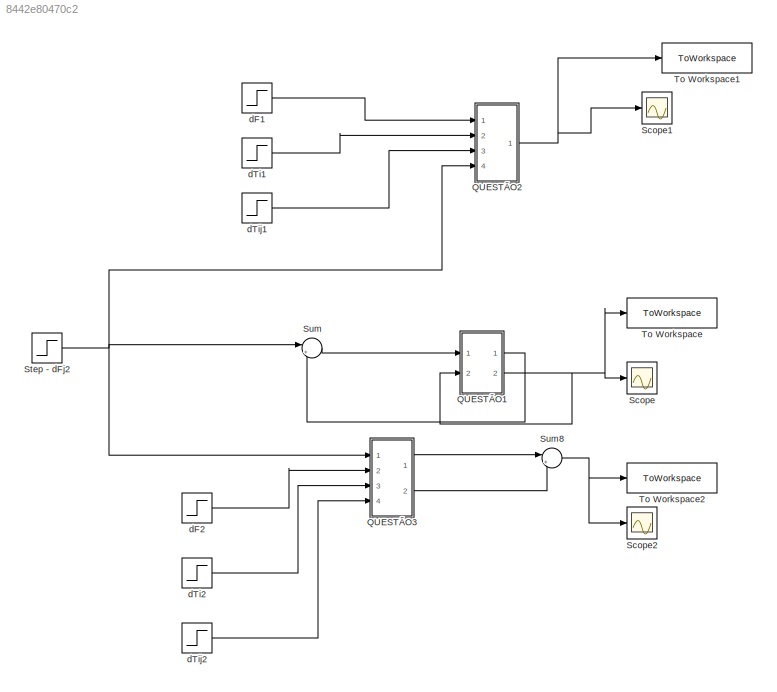
MODEL slx_8442e80470c2
KIND model
CONFIG AbsTol = auto
CONFIG EnableMultiTasking = off
CONFIG FixedStep = auto
CONFIG MaxStep = auto
CONFIG MinStep = auto
CONFIG RelTol = 1e-3
CONFIG SampleTimeConstraint = Unconstrained
CONFIG SolverName = VariableStepAuto
CONFIG StartTime = 0.0
CONFIG StopTime = 1800
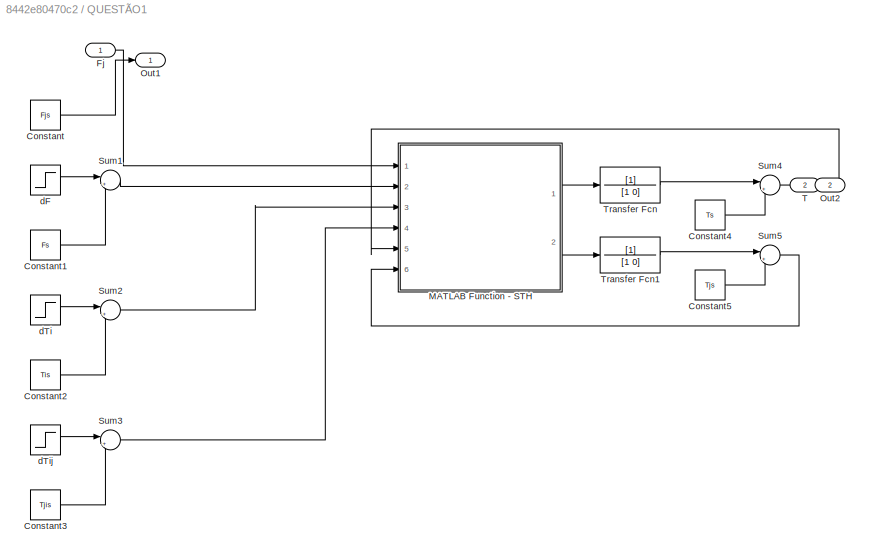
BLOCK [SubSystem] QUESTÃO1
  Ports = [2, 2]
  RequestExecContextInheritance = off
BLOCK [Constant] QUESTÃO1/Constant
  Value = Fjs
BLOCK [Constant] QUESTÃO1/Constant1
  Value = Fs
BLOCK [Constant] QUESTÃO1/Constant2
  Value = Tis
BLOCK [Constant] QUESTÃO1/Constant3
  Value = Tjis
BLOCK [Constant] QUESTÃO1/Constant4
  Value = Ts
BLOCK [Constant] QUESTÃO1/Constant5
  Value = Tjs
BLOCK [Inport] QUESTÃO1/Fj
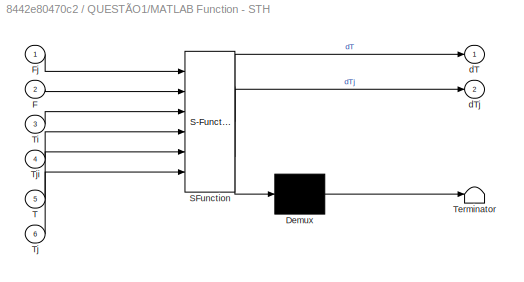
BLOCK [SubSystem] QUESTÃO1/MATLAB Function - STH
  ErrorFcn = Stateflow.Translate.translate
  PermitHierarchicalResolution = ExplicitOnly
  Ports = [6, 2]
  RequestExecContextInheritance = off
  SFBlockType = MATLAB Function
  TreatAsAtomicUnit = on
BLOCK [Demux] QUESTÃO1/MATLAB Function - STH/ Demux 
  Outputs = 1
  Ports = [1, 1]
BLOCK [S-Function] QUESTÃO1/MATLAB Function - STH/ SFunction 
  EnableBusSupport = on
  FunctionName = sf_sfun
  PortCounts = [6 3]
  Ports = [6, 3]
  SFcnIsStateOwnerBlock = off
  SFunctionDeploymentMode = off
  Tag = Stateflow S-Function 2
BLOCK [Terminator] QUESTÃO1/MATLAB Function - STH/ Terminator 
BLOCK [Inport] QUESTÃO1/MATLAB Function - STH/F
  Port = 2
BLOCK [Inport] QUESTÃO1/MATLAB Function - STH/Fj
BLOCK [Inport] QUESTÃO1/MATLAB Function - STH/T
  Port = 5
BLOCK [Inport] QUESTÃO1/MATLAB Function - STH/Ti
  Port = 3
BLOCK [Inport] QUESTÃO1/MATLAB Function - STH/Tj
  Port = 6
BLOCK [Inport] QUESTÃO1/MATLAB Function - STH/Tji
  Port = 4
BLOCK [Outport] QUESTÃO1/MATLAB Function - STH/dT
BLOCK [Outport] QUESTÃO1/MATLAB Function - STH/dTj
  Port = 2
BLOCK [Outport] QUESTÃO1/Out1
BLOCK [Outport] QUESTÃO1/Out2
  Port = 2
BLOCK [Sum] QUESTÃO1/Sum1
  Inputs = |++
  Ports = [2, 1]
BLOCK [Sum] QUESTÃO1/Sum2
  Inputs = |++
  Ports = [2, 1]
BLOCK [Sum] QUESTÃO1/Sum3
  Inputs = |++
  Ports = [2, 1]
BLOCK [Sum] QUESTÃO1/Sum4
  Inputs = |++
  Ports = [2, 1]
BLOCK [Sum] QUESTÃO1/Sum5
  Inputs = |++
  Ports = [2, 1]
BLOCK [Inport] QUESTÃO1/T
  Port = 2
BLOCK [TransferFcn] QUESTÃO1/Transfer Fcn
  Denominator = [1 0]
BLOCK [TransferFcn] QUESTÃO1/Transfer Fcn1
  Denominator = [1 0]
BLOCK [Step] QUESTÃO1/dF
  After = dF
  SampleTime = 0
BLOCK [Step] QUESTÃO1/dTi
  After = dTi
  SampleTime = 0
BLOCK [Step] QUESTÃO1/dTij
  After = dTij
  SampleTime = 0
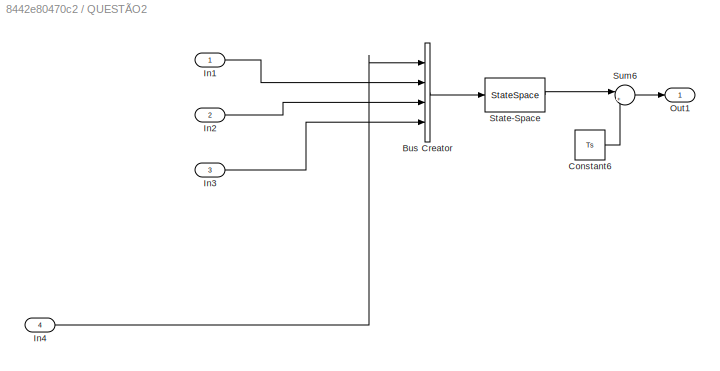
BLOCK [SubSystem] QUESTÃO2
  Ports = [4, 1]
  RequestExecContextInheritance = off
BLOCK [BusCreator] QUESTÃO2/Bus Creator
  DisplayOption = bar
  InheritFromInputs = on
  Inputs = 4
  Ports = [4, 1]
BLOCK [Constant] QUESTÃO2/Constant6
  Value = Ts
BLOCK [Inport] QUESTÃO2/In1
BLOCK [Inport] QUESTÃO2/In2
  Port = 2
BLOCK [Inport] QUESTÃO2/In3
  Port = 3
BLOCK [Inport] QUESTÃO2/In4
  Port = 4
BLOCK [Outport] QUESTÃO2/Out1
BLOCK [StateSpace] QUESTÃO2/State-Space
  A = A
  B = B
  C = C
  D = D
  InitialCondition = 0
  Ports = [1, 1]
BLOCK [Sum] QUESTÃO2/Sum6
  Inputs = |++
  Ports = [2, 1]
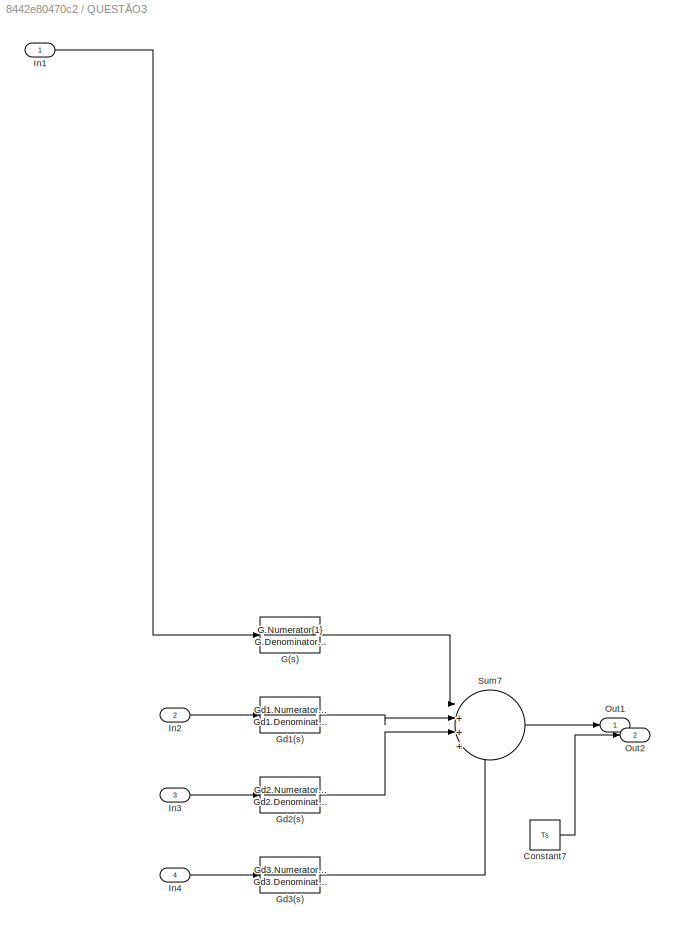
BLOCK [SubSystem] QUESTÃO3
  Ports = [4, 2]
  RequestExecContextInheritance = off
BLOCK [Constant] QUESTÃO3/Constant7
  Value = Ts
BLOCK [TransferFcn] QUESTÃO3/G(s)
  Denominator = G.Denominator{1}
  Numerator = G.Numerator{1}
BLOCK [TransferFcn] QUESTÃO3/Gd1(s)
  Denominator = Gd1.Denominator{1}
  Numerator = Gd1.Numerator{1}
BLOCK [TransferFcn] QUESTÃO3/Gd2(s)
  Denominator = Gd2.Denominator{1}
  Numerator = Gd2.Numerator{1}
BLOCK [TransferFcn] QUESTÃO3/Gd3(s)
  Denominator = Gd3.Denominator{1}
  Numerator = Gd3.Numerator{1}
BLOCK [Inport] QUESTÃO3/In1
BLOCK [Inport] QUESTÃO3/In2
  Port = 2
BLOCK [Inport] QUESTÃO3/In3
  Port = 3
BLOCK [Inport] QUESTÃO3/In4
  Port = 4
BLOCK [Outport] QUESTÃO3/Out1
BLOCK [Outport] QUESTÃO3/Out2
  Port = 2
BLOCK [Sum] QUESTÃO3/Sum7
  Inputs = |++++
  Ports = [4, 1]
BLOCK [Scope] Scope
  Floating = off
  NumInputPorts = 1
  Ports = [1]
  ScopeSpecificationString = Simulink.scopes.TimeScopeBlockCfg('CurrentConfiguration', extmgr.ConfigurationSet(extmgr.Configuration('Core','General UI',true),extmgr.Configuration('Core','Source UI',true),extmgr.Configuration('Sources','WiredSimulink',true),extmgr.Configuration('Visuals','Time Domain',true,'SerializedDisplays',{struct('MinYLimReal','50.87058','MaxYLimReal','58.86467','YLabelReal','','MinYLimMag','50.87058','Ma...<+1387ch>
BLOCK [Scope] Scope1
  Floating = off
  NumInputPorts = 1
  Ports = [1]
  ScopeSpecificationString = Simulink.scopes.TimeScopeBlockCfg('CurrentConfiguration', extmgr.ConfigurationSet(extmgr.Configuration('Core','General UI',true),extmgr.Configuration('Core','Source UI',true),extmgr.Configuration('Sources','WiredSimulink',true,'DataLoggingVariableName','ScopeData1'),extmgr.Configuration('Visuals','Time Domain',true,'SerializedDisplays',{struct('MinYLimReal','50.51676','MaxYLimReal','62.04915','YLa...<+1423ch>
BLOCK [Scope] Scope2
  Floating = off
  NumInputPorts = 1
  Ports = [1]
  ScopeSpecificationString = Simulink.scopes.TimeScopeBlockCfg('CurrentConfiguration', extmgr.ConfigurationSet(extmgr.Configuration('Core','General UI',true),extmgr.Configuration('Core','Source UI',true),extmgr.Configuration('Sources','WiredSimulink',true,'DataLoggingVariableName','ScopeData2'),extmgr.Configuration('Visuals','Time Domain',true,'SerializedDisplays',{struct('MinYLimReal','50.51676','MaxYLimReal','62.04915','YLa...<+1401ch>
BLOCK [Step] Step - dFj2
  After = dFj2
  SampleTime = 0
BLOCK [Sum] Sum
  Inputs = |++
  Ports = [2, 1]
BLOCK [Sum] Sum8
  Inputs = |++
  Ports = [2, 1]
BLOCK [ToWorkspace] To Workspace
  FixptAsFi = on
  MaxDataPoints = inf
  Ports = [1]
  SampleTime = -1
  SaveFormat = Structure With Time
  VariableName = simout15
BLOCK [ToWorkspace] To Workspace1
  FixptAsFi = on
  MaxDataPoints = inf
  Ports = [1]
  SampleTime = -1
  SaveFormat = Structure With Time
  VariableName = simout25
BLOCK [ToWorkspace] To Workspace2
  FixptAsFi = on
  MaxDataPoints = inf
  Ports = [1]
  SampleTime = -1
  SaveFormat = Structure With Time
  VariableName = simout35
BLOCK [Step] dF1
  After = dF
  SampleTime = 0
BLOCK [Step] dF2
  After = dF
  SampleTime = 0
BLOCK [Step] dTi1
  After = dTi
  SampleTime = 0
BLOCK [Step] dTi2
  After = dTi
  SampleTime = 0
BLOCK [Step] dTij1
  After = dTij
  SampleTime = 0
BLOCK [Step] dTij2
  After = dTij
  SampleTime = 0
LINE QUESTÃO1/Constant1:1 -> QUESTÃO1/Sum1:2
LINE QUESTÃO1/Constant2:1 -> QUESTÃO1/Sum2:2
LINE QUESTÃO1/Constant3:1 -> QUESTÃO1/Sum3:2
LINE QUESTÃO1/Constant4:1 -> QUESTÃO1/Sum4:2
LINE QUESTÃO1/Constant5:1 -> QUESTÃO1/Sum5:2
LINE QUESTÃO1/Constant:1 -> QUESTÃO1/Out1:1
LINE QUESTÃO1/Fj:1 -> QUESTÃO1/MATLAB Function - STH:1
LINE QUESTÃO1/MATLAB Function - STH:1 -> QUESTÃO1/Transfer Fcn:1
LINE QUESTÃO1/MATLAB Function - STH:2 -> QUESTÃO1/Transfer Fcn1:1
LINE QUESTÃO1/Sum1:1 -> QUESTÃO1/MATLAB Function - STH:2
LINE QUESTÃO1/Sum2:1 -> QUESTÃO1/MATLAB Function - STH:3
LINE QUESTÃO1/Sum3:1 -> QUESTÃO1/MATLAB Function - STH:4
LINE QUESTÃO1/Sum4:1 -> QUESTÃO1/Out2:1
LINE QUESTÃO1/Sum5:1 -> QUESTÃO1/MATLAB Function - STH:6
LINE QUESTÃO1/T:1 -> QUESTÃO1/MATLAB Function - STH:5
LINE QUESTÃO1/Transfer Fcn1:1 -> QUESTÃO1/Sum5:1
LINE QUESTÃO1/Transfer Fcn:1 -> QUESTÃO1/Sum4:1
LINE QUESTÃO1/dF:1 -> QUESTÃO1/Sum1:1
LINE QUESTÃO1/dTi:1 -> QUESTÃO1/Sum2:1
LINE QUESTÃO1/dTij:1 -> QUESTÃO1/Sum3:1
LINE QUESTÃO1:1 -> Sum:2
NET QUESTÃO1:2 -> QUESTÃO1:2, Scope:1, To Workspace:1
LINE QUESTÃO2/Bus Creator:1 -> QUESTÃO2/State-Space:1
LINE QUESTÃO2/Constant6:1 -> QUESTÃO2/Sum6:2
LINE QUESTÃO2/In1:1 -> QUESTÃO2/Bus Creator:2
LINE QUESTÃO2/In2:1 -> QUESTÃO2/Bus Creator:3
LINE QUESTÃO2/In3:1 -> QUESTÃO2/Bus Creator:4
LINE QUESTÃO2/In4:1 -> QUESTÃO2/Bus Creator:1
LINE QUESTÃO2/State-Space:1 -> QUESTÃO2/Sum6:1
LINE QUESTÃO2/Sum6:1 -> QUESTÃO2/Out1:1
NET QUESTÃO2:1 -> Scope1:1, To Workspace1:1
LINE QUESTÃO3/Constant7:1 -> QUESTÃO3/Out2:1
LINE QUESTÃO3/G(s):1 -> QUESTÃO3/Sum7:1
LINE QUESTÃO3/Gd1(s):1 -> QUESTÃO3/Sum7:2
LINE QUESTÃO3/Gd2(s):1 -> QUESTÃO3/Sum7:3
LINE QUESTÃO3/Gd3(s):1 -> QUESTÃO3/Sum7:4
LINE QUESTÃO3/In1:1 -> QUESTÃO3/G(s):1
LINE QUESTÃO3/In2:1 -> QUESTÃO3/Gd1(s):1
LINE QUESTÃO3/In3:1 -> QUESTÃO3/Gd2(s):1
LINE QUESTÃO3/In4:1 -> QUESTÃO3/Gd3(s):1
LINE QUESTÃO3/Sum7:1 -> QUESTÃO3/Out1:1
LINE QUESTÃO3:1 -> Sum8:1
LINE QUESTÃO3:2 -> Sum8:2
NET Step - dFj2:1 -> QUESTÃO2:4, QUESTÃO3:1, Sum:1
NET Sum8:1 -> Scope2:1, To Workspace2:1
LINE Sum:1 -> QUESTÃO1:1
LINE dF1:1 -> QUESTÃO2:1
LINE dF2:1 -> QUESTÃO3:2
LINE dTi1:1 -> QUESTÃO2:2
LINE dTi2:1 -> QUESTÃO3:3
LINE dTij1:1 -> QUESTÃO2:3
LINE dTij2:1 -> QUESTÃO3:4
note: NET lines group one-source signal fan-out (src -> all destinations, sorted); 1:1 wires keep LINE
CHART QUESTÃO1/MATLAB Function - STH states=1 transitions=1
  STATE_LABEL 'eML_blk_kernel()'
  STATE_LABEL 'SCRIPT:\nfunction [dT, dTj] = fcn(Fj, F, Ti, Tji, T, Tj)\n\nV = 283.168e-3;\nUA = 3.065;\npcp = 2.165e3;\nVj = 28.319e-3;\npcpj = 2.165e3;\n\ndT = (F/V)*(Ti - T) + (UA/(V*pcp))*(Tj - T);\n\ndTj = (Fj/Vj)*(Tji - Tj) - ((UA/(Vj*pcpj))*(Tj - T));'
CHART  states=0 transitions=0
